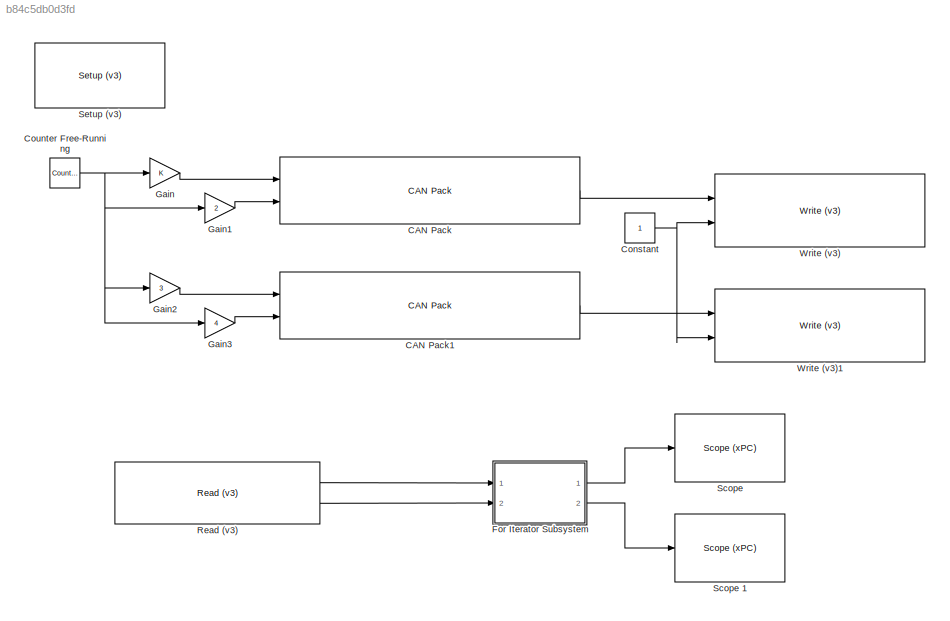
MODEL slx_b84c5db0d3fd
KIND model
BLOCK [Reference] CAN Pack  REF=canmsglib/CAN Pack
  ByteOrders = str2num('[int32(1);int32(1)]')
  DataFormat = manually specified signals
  DataTypes = str2num('[int32(1);int32(1)]')
  Factors = str2num('[double(1);double(1)]')
  Maximums = str2num('[double(Inf);double(Inf)]')
  Minimums = str2num('[double(-Inf);double(-Inf)]')
  MsgIDType = Standard (11-bit identifier)
  MsgIdentifier = 32
  MsgLength = 4
  MsgList = (none)
  MsgName = Message20
  MultiplexTypes = str2num('[int32(1);int32(1)]')
  MultiplexValues = str2num('[double(0);double(0)]')
  NSignals = 2
  Offsets = str2num('[double(0);double(0)]')
  Ports = [2, 1]
  Remote = off
  SignalInfo = Signal1$0$16$1$1$1$0$1$0$-Inf$Inf$#Signal2$16$16$1$1$1$0$1$0$-Inf$Inf$#
  SignalSizes = str2num('[int32(16);int32(16)]')
  SourceBlock = canmsglib/CAN Pack
  SourceType = CAN Pack
  StartBits = str2num('[int32(0);int32(16)]')
BLOCK [Reference] CAN Pack1  REF=canmsglib/CAN Pack
  ByteOrders = str2num('[int32(1);int32(1)]')
  DataFormat = manually specified signals
  DataTypes = str2num('[int32(1);int32(1)]')
  Factors = str2num('[double(1);double(1)]')
  Maximums = str2num('[double(Inf);double(Inf)]')
  Minimums = str2num('[double(-Inf);double(-Inf)]')
  MsgIDType = Standard (11-bit identifier)
  MsgIdentifier = 33
  MsgLength = 4
  MsgList = (none)
  MsgName = Message21
  MultiplexTypes = str2num('[int32(1);int32(1)]')
  MultiplexValues = str2num('[double(0);double(0)]')
  NSignals = 2
  Offsets = str2num('[double(0);double(0)]')
  Ports = [2, 1]
  Remote = off
  SignalInfo = Signal3$0$16$1$1$1$0$1$0$-Inf$Inf$#Signal4$16$16$1$1$1$0$1$0$-Inf$Inf$#
  SignalSizes = str2num('[int32(16);int32(16)]')
  SourceBlock = canmsglib/CAN Pack
  SourceType = CAN Pack
  StartBits = str2num('[int32(0);int32(16)]')
BLOCK [Constant] Constant
BLOCK [Reference] Counter Free-Running  REF=simulink/Sources/Counter
Free-Running
  NumBits = 16
  Ports = [0, 1]
  SourceBlock = simulink/Sources/Counter\nFree-Running
  SourceType = Counter Free-Running
  tsamp = 0.001
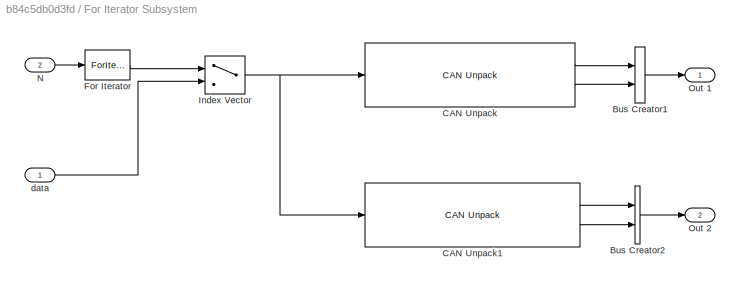
BLOCK [SubSystem] For Iterator Subsystem
  FunctionWithSeparateData = off
  MaskHideContents = off
  MinAlgLoopOccurrences = off
  Opaque = off
  Ports = [2, 2]
  PropExecContextOutsideSubsystem = off
  RTWSystemCode = Auto
  RequestExecContextInheritance = off
  TreatAsAtomicUnit = on
BLOCK [BusCreator] For Iterator Subsystem/Bus Creator1
  DisplayOption = bar
  Inputs = 2
  Ports = [2, 1]
BLOCK [BusCreator] For Iterator Subsystem/Bus Creator2
  DisplayOption = bar
  Inputs = 2
  Ports = [2, 1]
BLOCK [Reference] For Iterator Subsystem/CAN Unpack  REF=canmsglib/CAN Unpack
  ByteOrders = str2num('[int32(1);int32(1)]')
  DataFormat = manually specified signals
  DataTypes = str2num('[int32(1);int32(1)]')
  ErrorPort = off
  Factors = str2num('[double(1);double(1)]')
  IDPort = off
  LengthPort = off
  Maximums = str2num('[double(Inf);double(Inf)]')
  Minimums = str2num('[double(-Inf);double(-Inf)]')
  MsgIDType = Standard (11-bit identifier)
  MsgIdentifier = 32
  MsgLength = 4
  MsgList = (none)
  MsgName = Message20
  MultiplexTypes = str2num('[int32(1);int32(1)]')
  MultiplexValues = str2num('[double(0);double(0)]')
  NSignals = 2
  Offsets = str2num('[double(0);double(0)]')
  Ports = [1, 2]
  RemotePort = off
  SignalInfo = Signal1$0$16$1$1$1$0$1$0$-Inf$Inf$#Signal2$16$16$1$1$1$0$1$0$-Inf$Inf$#
  SignalSizes = str2num('[int32(16);int32(16)]')
  SourceBlock = canmsglib/CAN Unpack
  SourceType = CAN Unpack
  StartBits = str2num('[int32(0);int32(16)]')
  StatusPort = off
  TimestampPort = off
BLOCK [Reference] For Iterator Subsystem/CAN Unpack1  REF=canmsglib/CAN Unpack
  ByteOrders = str2num('[int32(1);int32(1)]')
  DataFormat = manually specified signals
  DataTypes = str2num('[int32(1);int32(1)]')
  ErrorPort = off
  Factors = str2num('[double(1);double(1)]')
  IDPort = off
  LengthPort = off
  Maximums = str2num('[double(Inf);double(Inf)]')
  Minimums = str2num('[double(-Inf);double(-Inf)]')
  MsgIDType = Standard (11-bit identifier)
  MsgIdentifier = 33
  MsgLength = 4
  MsgList = (none)
  MsgName = Message21
  MultiplexTypes = str2num('[int32(1);int32(1)]')
  MultiplexValues = str2num('[double(0);double(0)]')
  NSignals = 2
  Offsets = str2num('[double(0);double(0)]')
  Ports = [1, 2]
  RemotePort = off
  SignalInfo = Signal3$0$16$1$1$1$0$1$0$-Inf$Inf$#Signal4$16$16$1$1$1$0$1$0$-Inf$Inf$#
  SignalSizes = str2num('[int32(16);int32(16)]')
  SourceBlock = canmsglib/CAN Unpack
  SourceType = CAN Unpack
  StartBits = str2num('[int32(0);int32(16)]')
  StatusPort = off
  TimestampPort = off
BLOCK [ForIterator] For Iterator Subsystem/For Iterator
  IterationLimit = 20
  IterationSource = external
  IterationVariableDataType = int8
  Ports = [1, 1]
BLOCK [MultiPortSwitch] For Iterator Subsystem/Index Vector
  InputSameDT = off
  Inputs = 1
  Ports = [2, 1]
  SaturateOnIntegerOverflow = off
BLOCK [Inport] For Iterator Subsystem/N
  IconDisplay = Port number
  Port = 2
BLOCK [Outport] For Iterator Subsystem/Out 1
  IconDisplay = Port number
BLOCK [Outport] For Iterator Subsystem/Out 2
  IconDisplay = Port number
  Port = 2
BLOCK [Inport] For Iterator Subsystem/data
  IconDisplay = Port number
BLOCK [Gain] Gain
  OutDataTypeStr = Inherit: Inherit via back propagation
  ParamDataTypeStr = Inherit: Inherit via internal rule
  SaturateOnIntegerOverflow = off
BLOCK [Gain] Gain1
  Gain = 2
  OutDataTypeStr = Inherit: Inherit via back propagation
  ParamDataTypeStr = Inherit: Inherit via internal rule
  SaturateOnIntegerOverflow = off
BLOCK [Gain] Gain2
  Gain = 3
  OutDataTypeStr = Inherit: Inherit via back propagation
  ParamDataTypeStr = Inherit: Inherit via internal rule
  SaturateOnIntegerOverflow = off
BLOCK [Gain] Gain3
  Gain = 4
  OutDataTypeStr = Inherit: Inherit via back propagation
  ParamDataTypeStr = Inherit: Inherit via internal rule
  SaturateOnIntegerOverflow = off
BLOCK [Reference] Read (v3)  REF=speedgoatlib_IO601/Read (v3)
  Ports = [0, 2]
  SourceBlock = speedgoatlib_IO601/Read (v3)
  SourceType = read_IO601_3
  depth1 = 4
  depth2 = 4
  id = 1
  outputFormat = Vector of CAN_MESSAGE
  pciSlot = -1
  port1 = on
  port2 = off
  sampletime = 0.001
BLOCK [Reference] Scope   REF=xpclib/Misc./Scope (xPC) 
  Ports = [1]
  SourceBlock = xpclib/Misc./Scope (xPC)
  SourceType = xpcscopeblock
  autorestart = off
  autostart = on
  dynamicfilemode = off
  filename = data.dat
  formatstr = '%15.6f'
  grid = on
  interleave = 1
  maxwritefilesize = 512*1024^2
  mode = Lazy
  noprepostsamples = 0
  nosamples = 3
  scopeno = 1
  scopetype = Target
  triggerlevel = 0.0
  triggermode = FreeRun
  triggersample = 0
  triggerscope = 1
  triggersignal = 1
  triggerslope = Either
  trigsignalfromport = off
  viewmode = Numerical
  writesize = 512
  ylimits = [0,0]
BLOCK [Reference] Scope 1  REF=xpclib/Misc./Scope (xPC) 
  Ports = [1]
  SourceBlock = xpclib/Misc./Scope (xPC)
  SourceType = xpcscopeblock
  autorestart = off
  autostart = on
  dynamicfilemode = off
  filename = data.dat
  formatstr = '%15.6f'
  grid = on
  interleave = 1
  maxwritefilesize = 512*1024^2
  mode = Lazy
  noprepostsamples = 0
  nosamples = 3
  scopeno = 2
  scopetype = Target
  triggerlevel = 0.0
  triggermode = FreeRun
  triggersample = 0
  triggerscope = 1
  triggersignal = 1
  triggerslope = Either
  trigsignalfromport = off
  viewmode = Numerical
  writesize = 512
  ylimits = [0,0]
BLOCK [Reference] Setup (v3)  REF=speedgoatlib_IO601/Setup (v3)
  Ports = []
  SourceBlock = speedgoatlib_IO601/Setup (v3)
  SourceType = setup_IO601_3
  can1Baudrate = 1 MBaud
  can1UserBR = [1,1,5,2]
  can1bus = Highspeed
  can1enable = on
  can2Baudrate = 1 MBaud
  can2UserBR = [1,1,5,2]
  can2bus = Highspeed
  can2enable = on
  extAcc1 = [0,0,0,0]
  extAcc2 = [0,0,0,0]
  id = 1
  pciSlot = -1
  stdAcc1 = [0,0,0,0]
  stdAcc2 = [0,0,0,0]
BLOCK [Reference] Write (v3)  REF=speedgoatlib_IO601/Write (v3)
  Ports = [2]
  Priority = 1
  SourceBlock = speedgoatlib_IO601/Write (v3)
  SourceType = write_IO601_3
  id = 1
  init = []
  inputType = CAN_MESSAGE plus count
  maxMsg = 1
  pciSlot = -1
  port = 2
  sampletime = 0.002
  status = off
  term = []
BLOCK [Reference] Write (v3)1  REF=speedgoatlib_IO601/Write (v3)
  Ports = [2]
  Priority = 1
  SourceBlock = speedgoatlib_IO601/Write (v3)
  SourceType = write_IO601_3
  id = 1
  init = []
  inputType = CAN_MESSAGE plus count
  maxMsg = 1
  pciSlot = -1
  port = 2
  sampletime = 0.001
  status = off
  term = []
LINE CAN Pack1:1 -> Write (v3)1:1
LINE CAN Pack:1 -> Write (v3):1
NET Constant:1 -> Write (v3)1:2, Write (v3):2
NET Counter Free-Running:1 -> Gain1:1, Gain2:1, Gain3:1, Gain:1
LINE For Iterator Subsystem/Bus Creator1:1 -> For Iterator Subsystem/Out 1:1
LINE For Iterator Subsystem/Bus Creator2:1 -> For Iterator Subsystem/Out 2:1
LINE For Iterator Subsystem/CAN Unpack1:1 -> For Iterator Subsystem/Bus Creator2:1
LINE For Iterator Subsystem/CAN Unpack1:2 -> For Iterator Subsystem/Bus Creator2:2
LINE For Iterator Subsystem/CAN Unpack:1 -> For Iterator Subsystem/Bus Creator1:1
LINE For Iterator Subsystem/CAN Unpack:2 -> For Iterator Subsystem/Bus Creator1:2
LINE For Iterator Subsystem/For Iterator:1 -> For Iterator Subsystem/Index Vector:1
NET For Iterator Subsystem/Index Vector:1 -> For Iterator Subsystem/CAN Unpack1:1, For Iterator Subsystem/CAN Unpack:1
LINE For Iterator Subsystem/N:1 -> For Iterator Subsystem/For Iterator:1
LINE For Iterator Subsystem/data:1 -> For Iterator Subsystem/Index Vector:2
LINE For Iterator Subsystem:1 -> Scope :1
LINE For Iterator Subsystem:2 -> Scope 1:1
LINE Gain1:1 -> CAN Pack:2
LINE Gain2:1 -> CAN Pack1:1
LINE Gain3:1 -> CAN Pack1:2
LINE Gain:1 -> CAN Pack:1
LINE Read (v3):1 -> For Iterator Subsystem:1
LINE Read (v3):2 -> For Iterator Subsystem:2
note: NET lines group one-source signal fan-out (src -> all destinations, sorted); 1:1 wires keep LINE
